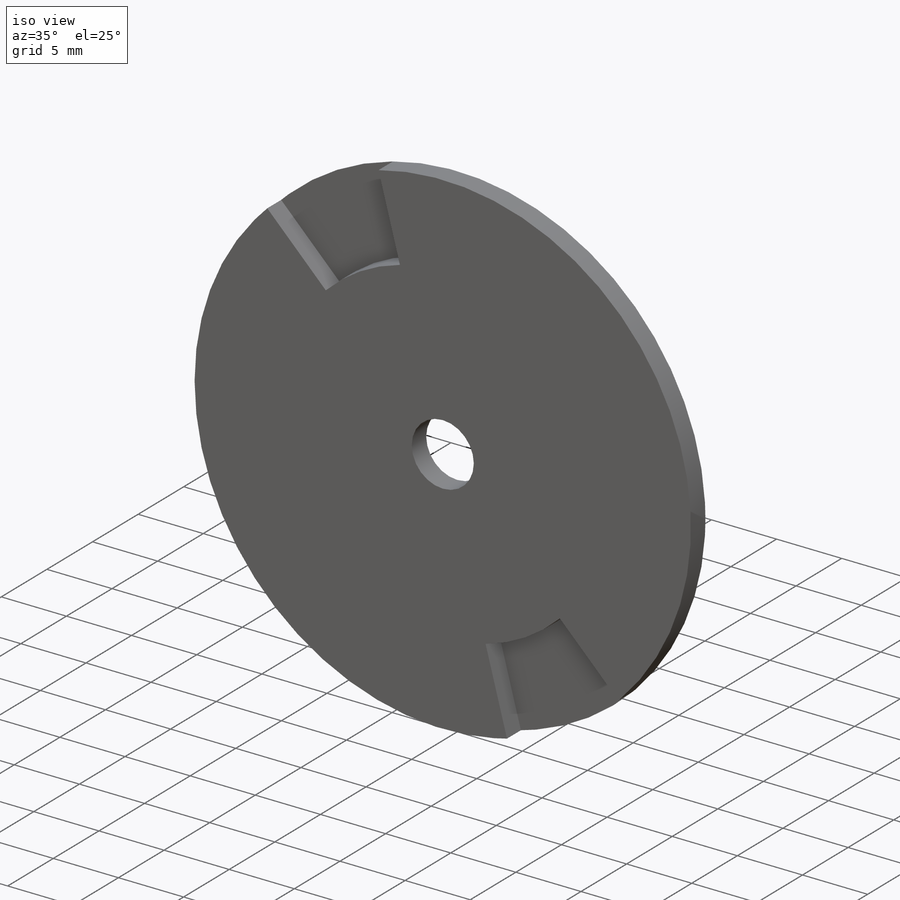
[diagram: iso view]
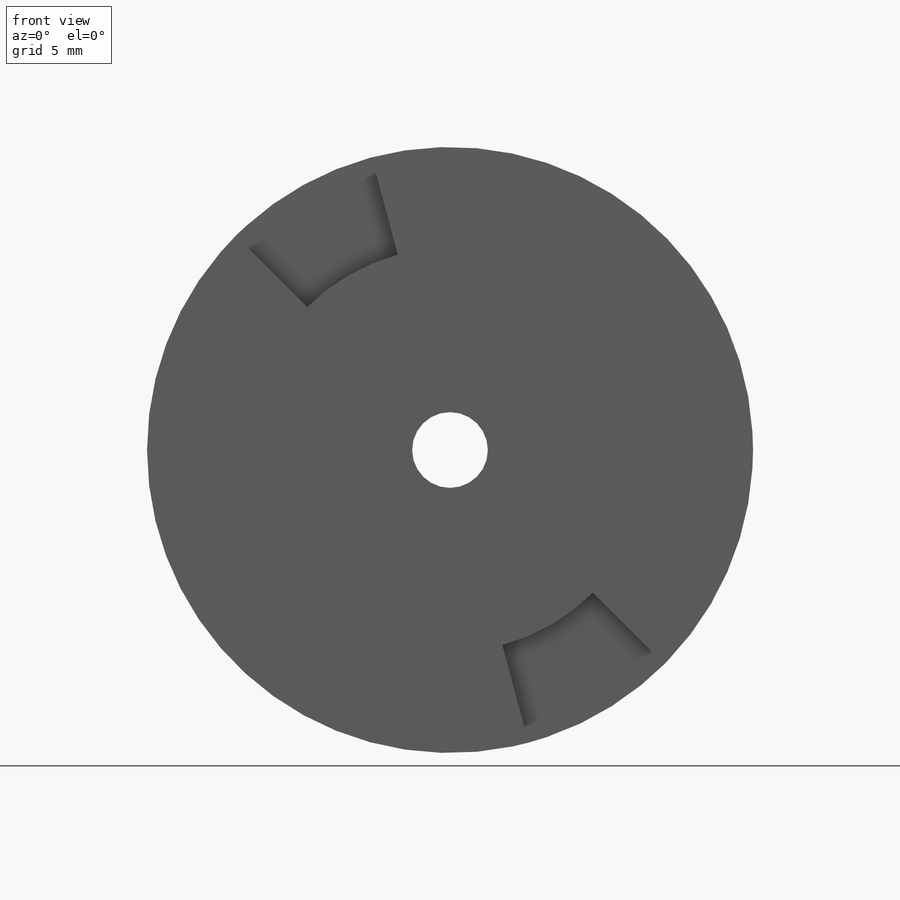
[diagram: front view]
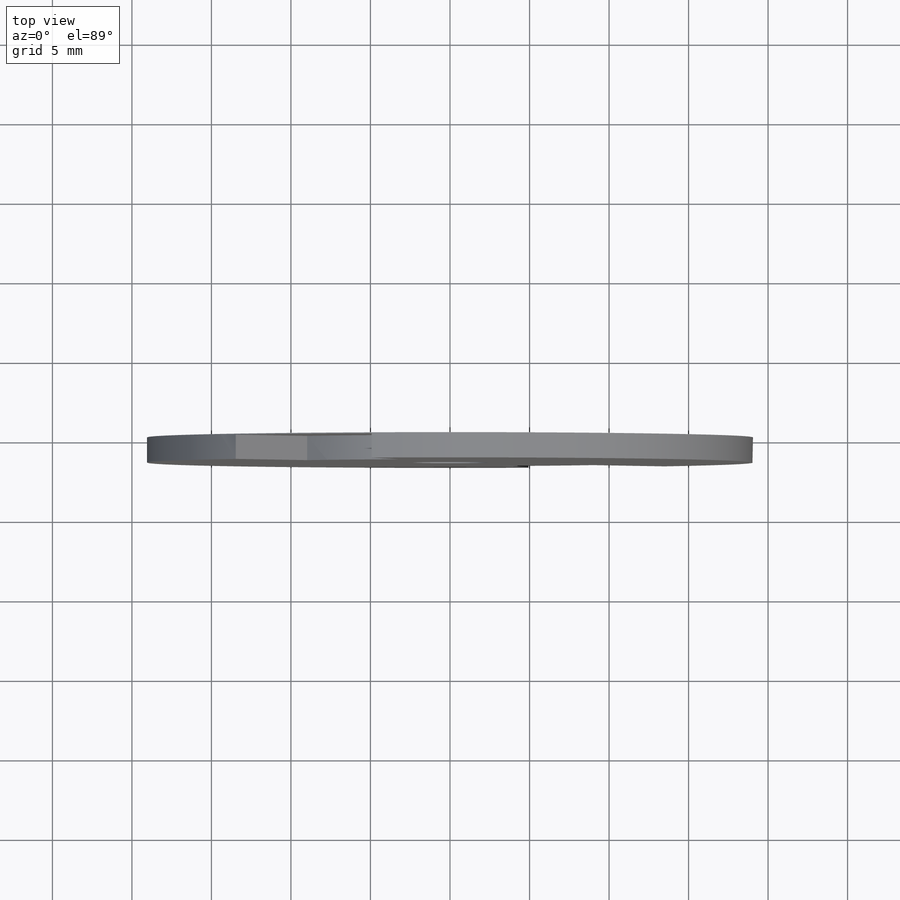
[diagram: top view]
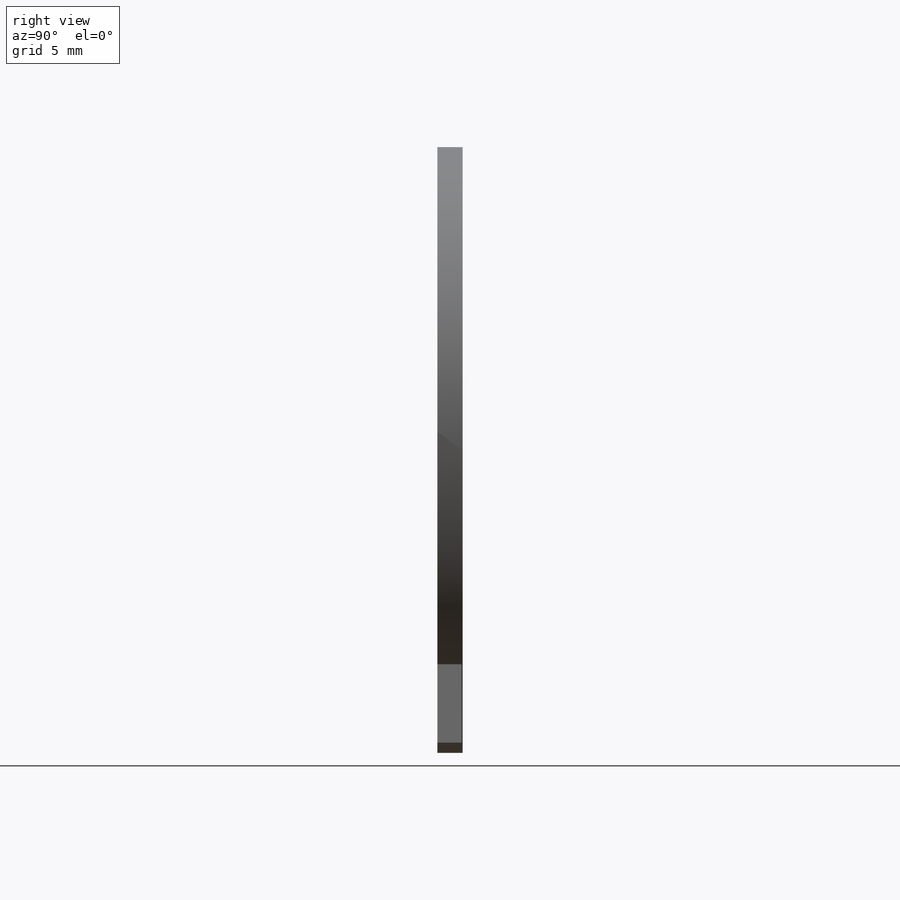
[diagram: right view]
SOLIDWORKS PART (.sldprt)
format: sldprt  version: not decoded by parser v0  size: 171,008 bytes
history: native  units: mm
features: sketch x3, cut_extrude x2, material x1, extrude x1 (+11 scaffold rows collapsed)
feature tree (18):
  scaffold x11  (default folders/planes/origin — collapsed)
  material  "Material <not specified>"
  sketch  "Sketch1"  dims[D1=38.1mm]
  extrude  "Extrude1"  Depth=1.5875mm
  sketch  "Sketch2"  dims[c1.D1=4.7625mm c1.D2=19.05mm c2.D2=45.0deg c2.D3=11.43mm c2.D4=19.05mm c3.D4=45.0deg]
  cut_extrude  "Cut-Extrude1"  Depth=3.175mm
  sketch  "Sketch3"  dims[c1.D2=38.1mm c1.D3=25.4mm c1.D1=60.0deg c1.D4=~22.100817mm c2.D4=30.0deg c2.D5=19.05mm c3.D5=172.5deg c4.D5=~16.497784mm c5.D5=15.0deg]
  cut_extrude  "Cut-Extrude2"  Depth=1.524mm
decode coverage: 6 of 6 modeling features carry decoded parameters
note: ~ marks probable driven/reference dimensions
note: suppression state not decoded; provenance and decode notes live in map.json
